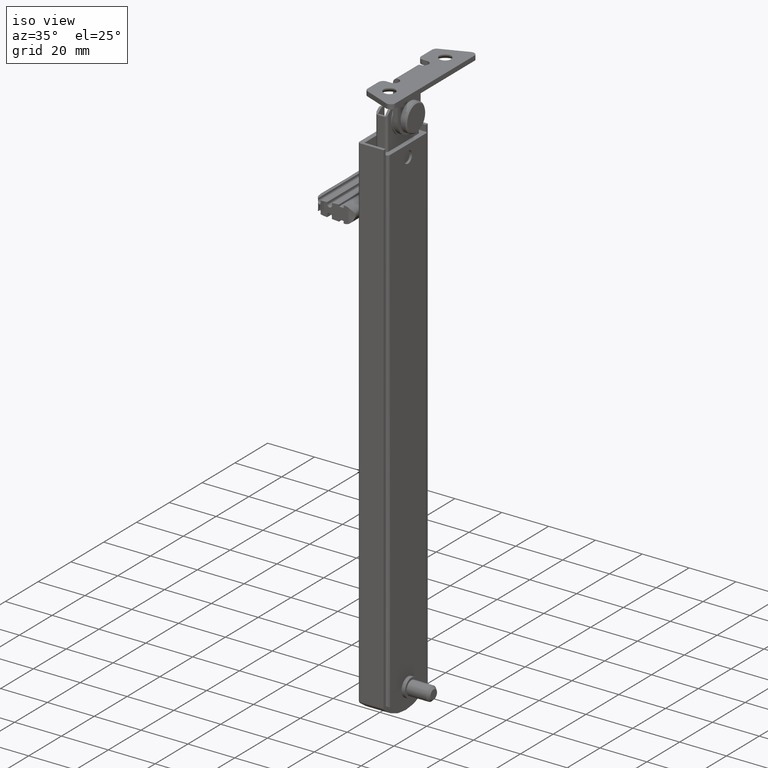
[diagram: clean part render]
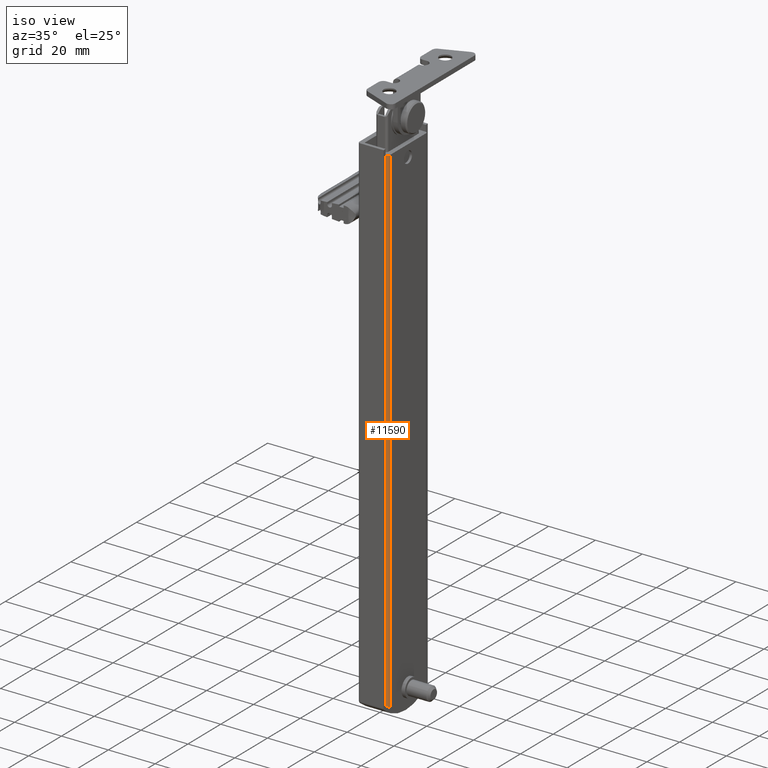
[diagram: same view with one face highlighted and labeled with its STEP entity id]
A machine part, iso view. The second image highlights one B-rep face of the part: STEP entity #11590.
In plain terms, the highlighted face is a freeform B-spline surface patch.
Its self-contained STEP definition (entity closure, byte-faithful):
#11052=CARTESIAN_POINT('',(11.0,-12.0,-3.091673999999895));
#11053=VERTEX_POINT('',#11052);
#11216=CARTESIAN_POINT('',(12.000000000000121,-11.0,-3.946945088489875));
#11217=VERTEX_POINT('',#11216);
#11230=CARTESIAN_POINT('',(11.000000000000121,-12.000000000000121,-3.243651999999795));
#11231=VERTEX_POINT('',#11230);
#11232=CARTESIAN_POINT('',(11.000000000000121,-12.000000000000121,-3.243651999999795));
#11233=CARTESIAN_POINT('',(11.073628852205740,-12.000000000000121,-3.243651999999775));
#11234=CARTESIAN_POINT('',(11.145439706449400,-11.991970307410980,-3.249682795540244));
#11235=CARTESIAN_POINT('',(11.250633628835260,-11.968747765853530,-3.267046469892369));
#11236=CARTESIAN_POINT('',(11.285512919193881,-11.959034779556010,-3.274300384648481));
#11237=CARTESIAN_POINT('',(11.352933784070860,-11.936324238437781,-3.291217677252922));
#11238=CARTESIAN_POINT('',(11.385513810445300,-11.923354214805221,-3.300860620680352));
#11239=CARTESIAN_POINT('',(11.448585469002079,-11.894413204868320,-3.322310492909759));
#11240=CARTESIAN_POINT('',(11.479076383001480,-11.878441209999650,-3.334118197549469));
#11241=CARTESIAN_POINT('',(11.538058356439601,-11.843603191815291,-3.359778441199283));
#11242=CARTESIAN_POINT('',(11.566491626386890,-11.824745338725750,-3.373624152321146));
#11243=CARTESIAN_POINT('',(11.647218368274810,-11.765231291723500,-3.417141063703741));
#11244=CARTESIAN_POINT('',(11.695637034234950,-11.721301063593280,-3.449039089552936));
#11245=CARTESIAN_POINT('',(11.782784756734010,-11.625646971034691,-3.517797195693503));
#11246=CARTESIAN_POINT('',(11.820648666907770,-11.574812140232661,-3.554015060162020));
#11247=CARTESIAN_POINT('',(11.869352581068251,-11.495171079076840,-3.610145108535695));
#11248=CARTESIAN_POINT('',(11.884260792246829,-11.468015580191530,-3.629187201588521));
#11249=CARTESIAN_POINT('',(11.911481867839161,-11.412500347402810,-3.667901785318751));
#11250=CARTESIAN_POINT('',(11.923824873790601,-11.384039356008140,-3.687643550875272));
#11251=CARTESIAN_POINT('',(11.956490255029481,-11.298128981521410,-3.746897809673795));
#11252=CARTESIAN_POINT('',(11.972672031224130,-11.239865555888830,-3.786642207626882));
#11253=CARTESIAN_POINT('',(11.994427685472880,-11.121408169381450,-3.866509246999103));
#11254=CARTESIAN_POINT('',(11.999999999999989,-11.061214178781711,-3.906632321239107));
#11255=CARTESIAN_POINT('',(12.000000000000121,-11.0,-3.946945088489875));
#11256=B_SPLINE_CURVE_WITH_KNOTS('',3,(#11232,#11233,#11234,#11235,#11236,#11237,#11238,#11239,#11240,#11241,#11242,#11243,#11244,#11245,#11246,#11247,#11248,#11249,#11250,#11251,#11252,#11253,#11254,#11255),.UNSPECIFIED.,.F.,.U.,(4,2,2,2,2,2,2,2,2,2,2,4),(0.0,0.125000000000000,0.187500000000000,0.250000000000000,0.312500000000000,0.375000000000001,0.500000000000000,0.625000000000000,0.687500000000001,0.750000000000001,0.875000000000001,1.0),.UNSPECIFIED.);
#11257=EDGE_CURVE('',#11231,#11217,#11256,.T.);
#11421=CARTESIAN_POINT('',(11.0,-12.0,209.456345000000000));
#11422=VERTEX_POINT('',#11421);
#11428=CARTESIAN_POINT('',(12.0,-11.0,209.456345000000000));
#11429=VERTEX_POINT('',#11428);
#11430=CARTESIAN_POINT('',(11.0,-12.0,209.456345000000000));
#11431=CARTESIAN_POINT('',(11.114531076271760,-12.000054534553531,209.456345000000110));
#11432=CARTESIAN_POINT('',(11.359958856526870,-11.957419938000429,209.456345000000110));
#11433=CARTESIAN_POINT('',(11.717891613430259,-11.743242014060190,209.456345000000000));
#11434=CARTESIAN_POINT('',(11.951909197616979,-11.392745503066649,209.456345000000310));
#11435=CARTESIAN_POINT('',(12.000033524643911,-11.114521519378950,209.456344999999800));
#11436=CARTESIAN_POINT('',(12.0,-11.0,209.456345000000000));
#11437=B_SPLINE_CURVE_WITH_KNOTS('',3,(#11430,#11431,#11432,#11433,#11434,#11435,#11436),.UNSPECIFIED.,.F.,.U.,(4,1,1,1,4),(0.000001035569487,0.343638637552318,0.736452044490812,1.227316281582336,1.570953883565278),.UNSPECIFIED.);
#11438=EDGE_CURVE('',#11422,#11429,#11437,.T.);
#11519=CARTESIAN_POINT('',(11.000000000000121,-12.000000000000121,-3.243651999999795));
#11520=CARTESIAN_POINT('',(11.0,-12.0,-3.091673999999895));
#11521=QUASI_UNIFORM_CURVE('',1,(#11519,#11520),.UNSPECIFIED.,.F.,.U.);
#11522=EDGE_CURVE('',#11231,#11053,#11521,.T.);
#11561=CARTESIAN_POINT('',(11.999657324975560,-10.973823051692129,-9.282027340702125));
#11562=CARTESIAN_POINT('',(11.999657324975560,-10.973823051692129,214.924804308517510));
#11563=CARTESIAN_POINT('',(12.028492260166264,-12.074984800554724,-9.282027340702131));
#11564=CARTESIAN_POINT('',(12.028492260166264,-12.074984800554724,214.924804308517510));
#11565=CARTESIAN_POINT('',(10.929679924374017,-11.997524479380811,-9.282027340702127));
#11566=CARTESIAN_POINT('',(10.929679924374017,-11.997524479380811,214.924804308517590));
#11574=(BOUNDED_SURFACE()B_SPLINE_SURFACE(1,2,((#11561,#11563,#11565),(#11562,#11564,#11566)),.UNSPECIFIED.,.F.,.F.,.U.)B_SPLINE_SURFACE_WITH_KNOTS((2,2),(3,3),(0.0,224.206831649219710),(0.0,0.994518632334191),.UNSPECIFIED.)GEOMETRIC_REPRESENTATION_ITEM()RATIONAL_B_SPLINE_SURFACE(((1.0,0.670944223154768,0.996392648609106),(1.0,0.670944223154768,0.996392648609106)))REPRESENTATION_ITEM('')SURFACE());
#11575=ORIENTED_EDGE('',*,*,#11522,.F.);
#11576=ORIENTED_EDGE('',*,*,#11257,.T.);
#11577=CARTESIAN_POINT('',(12.000000000000121,-11.0,-3.946945088489875));
#11578=CARTESIAN_POINT('',(12.0,-11.0,209.456345000000000));
#11579=QUASI_UNIFORM_CURVE('',1,(#11577,#11578),.UNSPECIFIED.,.F.,.U.);
#11580=EDGE_CURVE('',#11217,#11429,#11579,.T.);
#11581=ORIENTED_EDGE('',*,*,#11580,.T.);
#11582=ORIENTED_EDGE('',*,*,#11438,.F.);
#11583=CARTESIAN_POINT('',(11.0,-12.0,-3.091673999999895));
#11584=CARTESIAN_POINT('',(11.0,-12.0,209.456345000000000));
#11585=QUASI_UNIFORM_CURVE('',1,(#11583,#11584),.UNSPECIFIED.,.F.,.U.);
#11586=EDGE_CURVE('',#11053,#11422,#11585,.T.);
#11587=ORIENTED_EDGE('',*,*,#11586,.F.);
#11588=EDGE_LOOP('',(#11575,#11576,#11581,#11582,#11587));
#11589=FACE_OUTER_BOUND('',#11588,.T.);
#11590=ADVANCED_FACE('',(#11589),#11574,.T.);